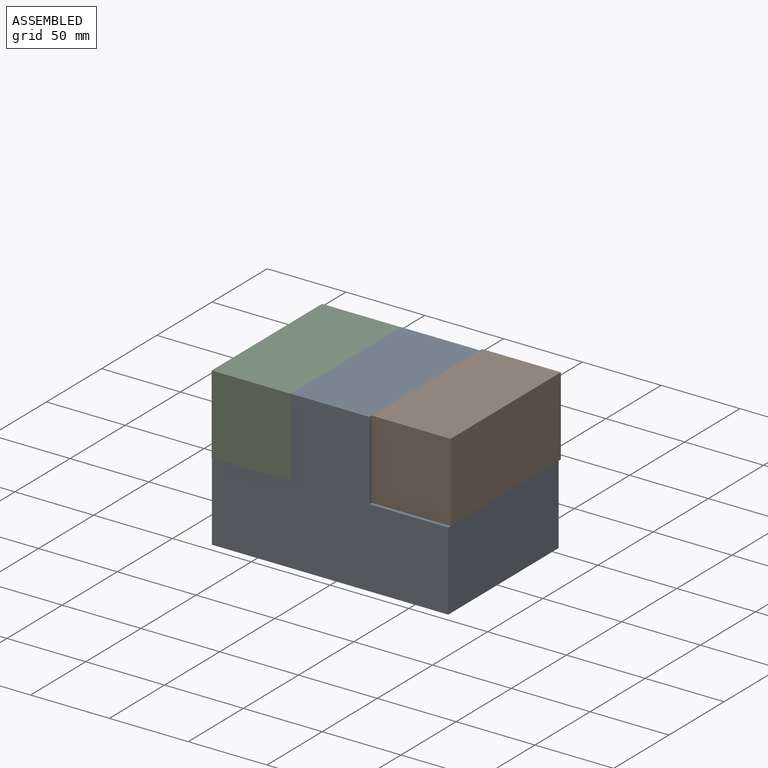
[diagram: assembled view]
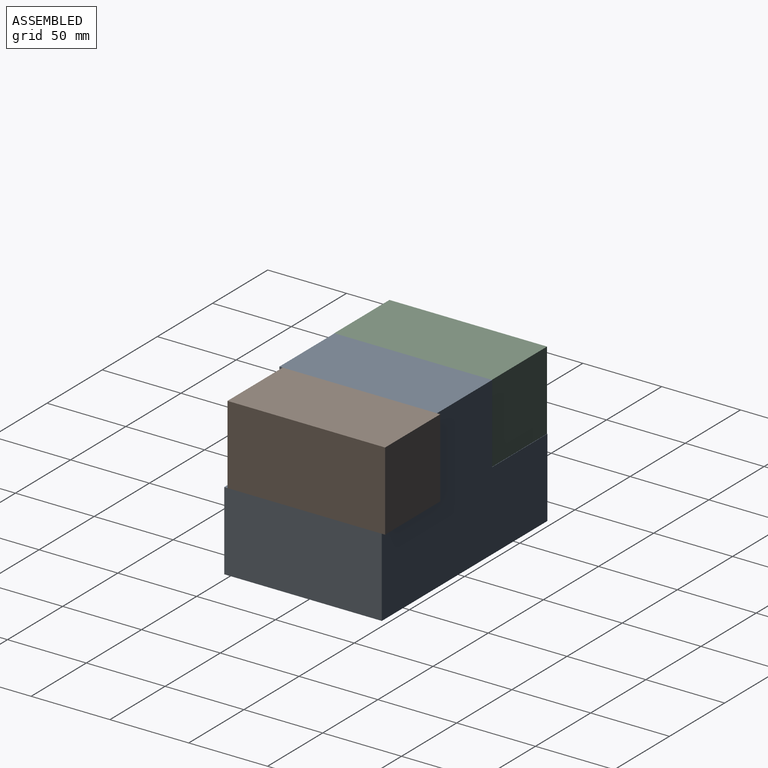
[diagram: assembled view, second angle]
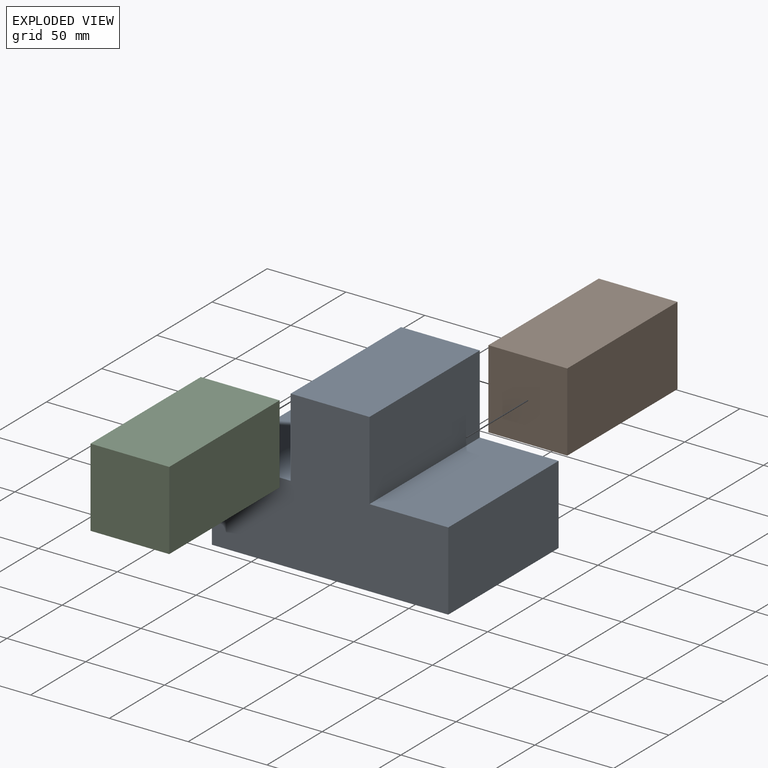
[diagram: exploded view]
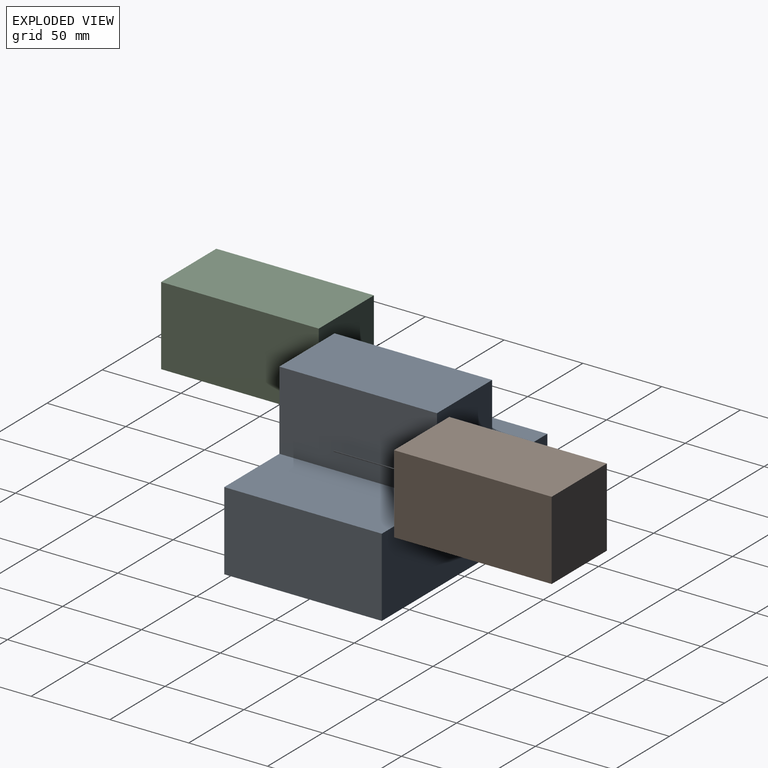
[diagram: exploded view, second angle]
ASSEMBLY  parts=3 mates=2
PART A: 10 faces, bbox 150x100x100 mm
  f0: plane 100x50mm, normal (0,0,1), area 5000mm2, adj f1,f2,f4,f7
  f1: plane 100x50mm, normal (1,0,0), area 5000mm2, adj f0,f2,f4,f6
  f2: plane 150x100mm, normal (0,1,0), area 10000mm2, adj f0,f1,f3,f5,f6,f7,f8,f9
  f3: plane 100x50mm, normal (-1,0,0), area 5000mm2, adj f2,f4,f5,f6
  f4: plane 150x100mm, normal (0,-1,0), area 10000mm2, adj f0,f1,f3,f5,f6,f7,f8,f9
  f5: plane 100x50mm, normal (0,0,1), area 5000mm2, adj f2,f3,f4,f8
  f6: plane 150x100mm, normal (0,0,-1), area 15000mm2, adj f1,f2,f3,f4
  f7: plane 100x50mm, normal (1,0,0), area 5000mm2, adj f0,f2,f4,f9
  f8: plane 100x50mm, normal (-1,0,0), area 5000mm2, adj f2,f4,f5,f9
  f9: plane 100x50mm, normal (0,0,1), area 5000mm2, adj f2,f4,f7,f8
PART B: 6 faces, bbox 50x100x50 mm
  f0: plane 100x50mm, normal (1,0,0), area 5000mm2, adj f1,f3,f4,f5
  f1: plane 50x50mm, normal (0,1,0), area 2500mm2, adj f0,f2,f4,f5
  f2: plane 100x50mm, normal (-1,0,0), area 5000mm2, adj f1,f3,f4,f5
  f3: plane 50x50mm, normal (0,-1,0), area 2500mm2, adj f0,f2,f4,f5
  f4: plane 100x50mm, normal (0,0,1), area 5000mm2, adj f0,f1,f2,f3
  f5: plane 100x50mm, normal (0,0,-1), area 5000mm2, adj f0,f1,f2,f3
PART C: same geometry as B
PLACE A at identity
PLACE B t=(50,2.09,50)mm
PLACE C t=(-50,-0.18,50)mm
MATE slider A.f4 <-> B.f3  axis (0,-1,0) through (50,-50,50)mm
MATE slider C.f3 <-> A.f4  axis (0,-1,0) through (-50,-50.18,50)mm
